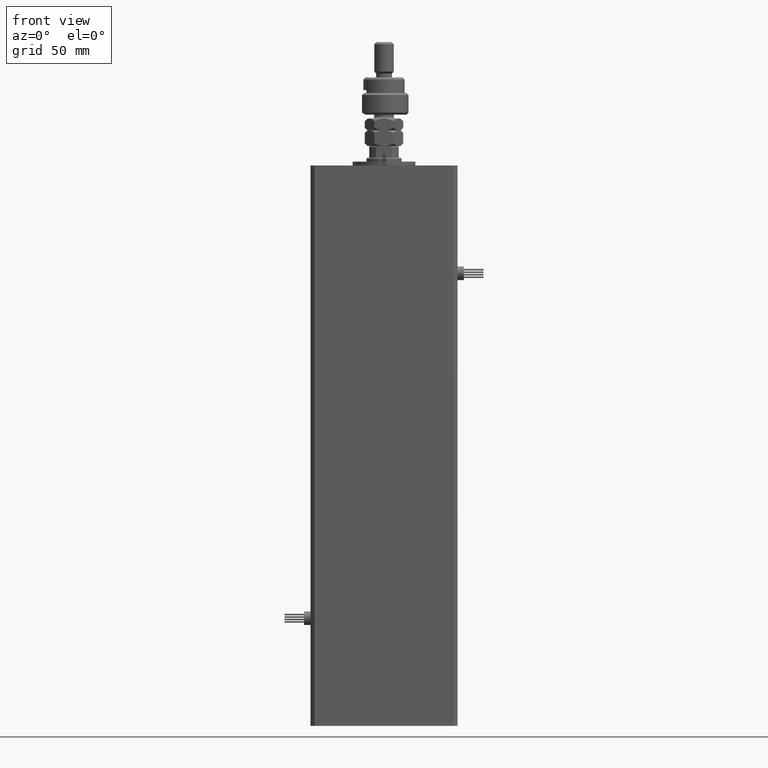
[diagram: clean part render]
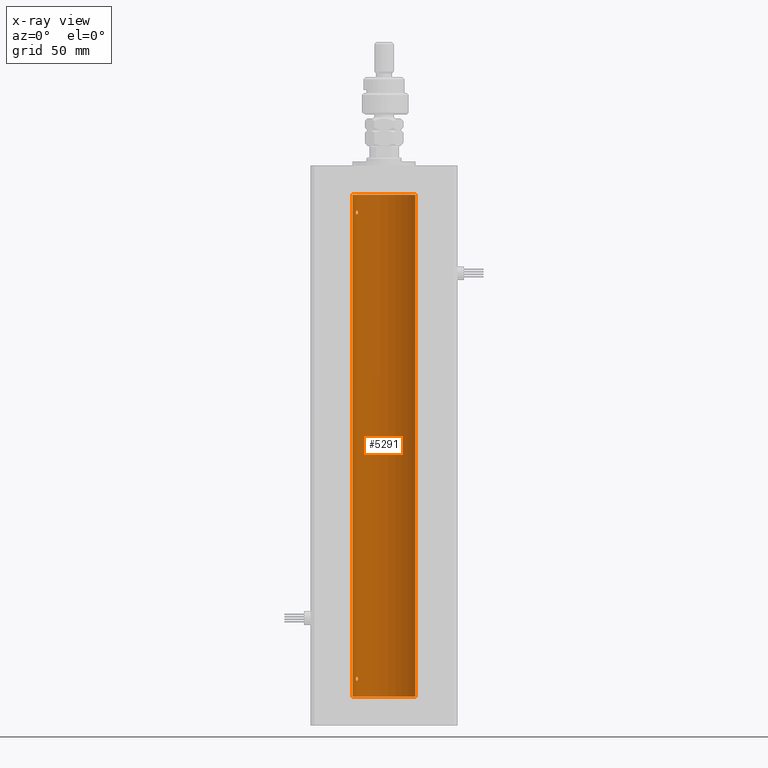
[diagram: x-ray — body ghosted, one internal face saturated and labeled with its STEP entity id]
A machine part, front view, then the same camera in x-ray: the body is ghosted and one INTERNAL B-rep face — a face not visible from any outside direction — is saturated and labeled: STEP entity #5291.
In plain terms, the highlighted cylindrical surface (edge-blend (fillet) strip) has radius 16 mm, axis along (-0, -0, -1).
Its self-contained STEP definition (entity closure, byte-faithful):
#112 = EDGE_LOOP ( 'NONE', ( #23270, #23401, #51077, #47657 ) ) ;
#246 = CARTESIAN_POINT ( 'NONE',  ( -16.00000000000000000, 0.000000000000000000, 256.0000000000000000 ) ) ;
#1392 = CARTESIAN_POINT ( 'NONE',  ( -13.22875655532295447, 8.999999999999996447, 9.000000000000000000 ) ) ;
#1679 = CARTESIAN_POINT ( 'NONE',  ( -14.38749456993815912, 6.999999999999997335, 9.000000000000000000 ) ) ;
#2547 = CARTESIAN_POINT ( 'NONE',  ( -13.37741691572086111, 8.778212469423007036, 247.6408828602271512 ) ) ;
#2845 = CARTESIAN_POINT ( 'NONE',  ( -14.11618354197461400, 7.533333301880474231, 247.8932076519334373 ) ) ;
#3246 = CARTESIAN_POINT ( 'NONE',  ( -14.11621438951177687, 7.533308783217008475, 246.1065710718394826 ) ) ;
#3439 = CARTESIAN_POINT ( 'NONE',  ( -13.49759407097374897, 8.592283911330223845, 8.184099152127670251 ) ) ;
#4105 = CARTESIAN_POINT ( 'NONE',  ( -13.56386909142669772, 8.487613976483636691, 246.1182242979961359 ) ) ;
#4822 = DIRECTION ( 'NONE',  ( -0.000000000000000000, -0.000000000000000000, -1.000000000000000000 ) ) ;
#5019 = B_SPLINE_CURVE_WITH_KNOTS ( 'NONE', 3,
 ( #1392, #41568, #5800, #27786, #54468, #45684, #40993, #36896, #18716, #19577, #11060, #23386, #6086, #19295, #14314, #1679 ),
 .UNSPECIFIED., .F., .F.,
 ( 4, 2, 2, 2, 2, 2, 2, 4 ),
 ( 0.003377672193071777282, 0.003799209865779874882, 0.004220747538487972482, 0.005063822883904168549, 0.005485360556612268318, 0.005906898229320367219, 0.006328435902028466120, 0.006749973574736565889 ),
 .UNSPECIFIED. ) ;
#5210 = DIRECTION ( 'NONE',  ( 1.000000000000000000, 0.000000000000000000, 0.000000000000000000 ) ) ;
#5291 = ADVANCED_FACE ( 'NONE', ( #7080, #55453, #10898 ), #55734, .F. ) ;
#5800 = CARTESIAN_POINT ( 'NONE',  ( -13.24976519864029179, 8.969293778684576779, 9.281535226335156707 ) ) ;
#6086 = CARTESIAN_POINT ( 'NONE',  ( -14.31650799088418324, 7.144337649771912879, 9.535522627373689275 ) ) ;
#6500 = DIRECTION ( 'NONE',  ( -1.000000000000000000, 0.000000000000000000, 0.000000000000000000 ) ) ;
#6958 = CARTESIAN_POINT ( 'NONE',  ( -14.27547848986622014, 7.226527013162185931, 8.352555730181528304 ) ) ;
#7080 = FACE_OUTER_BOUND ( 'NONE', #112, .T. ) ;
#7848 = CARTESIAN_POINT ( 'NONE',  ( -13.98699950016872151, 7.770591669637119558, 8.018476816648481886 ) ) ;
#8245 = ORIENTED_EDGE ( 'NONE', *, *, #8400, .F. ) ;
#8400 = EDGE_CURVE ( 'NONE', #13921, #18887, #22000, .T. ) ;
#8951 = CARTESIAN_POINT ( 'NONE',  ( -16.00000000000000000, 0.000000000000000000, 256.0000000000000000 ) ) ;
#9127 = EDGE_CURVE ( 'NONE', #26738, #33431, #31037, .T. ) ;
#10598 = VERTEX_POINT ( 'NONE', #54082 ) ;
#10898 = FACE_BOUND ( 'NONE', #19167, .T. ) ;
#11060 = CARTESIAN_POINT ( 'NONE',  ( -14.17576283486774535, 7.420212263225985261, 9.825253034304354927 ) ) ;
#12344 = CARTESIAN_POINT ( 'NONE',  ( -14.17528142432533755, 7.421143801852455368, 246.1739430735387089 ) ) ;
#12955 = EDGE_CURVE ( 'NONE', #18887, #13921, #43288, .T. ) ;
#13184 = CARTESIAN_POINT ( 'NONE',  ( -14.38749456993815912, 6.999999999999997335, 9.000000000000000000 ) ) ;
#13560 = VERTEX_POINT ( 'NONE', #33264 ) ;
#13691 = ORIENTED_EDGE ( 'NONE', *, *, #9127, .F. ) ;
#13921 = VERTEX_POINT ( 'NONE', #51852 ) ;
#14314 = CARTESIAN_POINT ( 'NONE',  ( -14.38749456993816445, 6.999999999999997335, 9.142625441524202756 ) ) ;
#15774 = CARTESIAN_POINT ( 'NONE',  ( -13.37674940693422521, 8.779234808442870630, 8.360244157126784259 ) ) ;
#16034 = LINE ( 'NONE', #8951, #50956 ) ;
#16340 = CARTESIAN_POINT ( 'NONE',  ( -13.98878315975728803, 7.767347947480344850, 247.9805461432612503 ) ) ;
#16463 = CARTESIAN_POINT ( 'NONE',  ( -13.70481462797717676, 8.258098555717509726, 246.0259974772911562 ) ) ;
#17039 = CARTESIAN_POINT ( 'NONE',  ( -13.22875655532295802, 8.999999999999996447, 247.0000000000000000 ) ) ;
#17750 = LINE ( 'NONE', #27684, #37399 ) ;
#18555 = EDGE_CURVE ( 'NONE', #10598, #13560, #17750, .T. ) ;
#18576 = ORIENTED_EDGE ( 'NONE', *, *, #32279, .F. ) ;
#18716 = CARTESIAN_POINT ( 'NONE',  ( -13.98878315975729159, 7.767347947480346626, 9.980546143261280534 ) ) ;
#18887 = VERTEX_POINT ( 'NONE', #42633 ) ;
#19167 = EDGE_LOOP ( 'NONE', ( #36142, #8245 ) ) ;
#19295 = CARTESIAN_POINT ( 'NONE',  ( -14.37227256866306213, 7.031482256185707769, 9.284457240976479397 ) ) ;
#19577 = CARTESIAN_POINT ( 'NONE',  ( -14.11618354197461400, 7.533333301880478672, 9.893207651933416003 ) ) ;
#20166 = CARTESIAN_POINT ( 'NONE',  ( -14.37250282441143767, 7.031013007322936659, 8.716856996037261496 ) ) ;
#20438 = EDGE_CURVE ( 'NONE', #13560, #29228, #38447, .T. ) ;
#21326 = CARTESIAN_POINT ( 'NONE',  ( -13.23400746336172951, 8.992294519018086518, 8.857814559023015732 ) ) ;
#21427 = CARTESIAN_POINT ( 'NONE',  ( -13.49759407097375075, 8.592283911330223845, 246.1840991521276862 ) ) ;
#22000 = B_SPLINE_CURVE_WITH_KNOTS ( 'NONE', 3,
 ( #42428, #38048, #42729, #55908, #2547, #33933, #51797, #25126, #16340, #2845, #57929, #22166, #39771, #30391, #48576, #40342 ),
 .UNSPECIFIED., .F., .F.,
 ( 4, 2, 2, 2, 2, 2, 2, 4 ),
 ( 0.003377672193071779884, 0.003799209865779855366, 0.004220747538487930849, 0.005063822883904134722, 0.005485360556612237093, 0.005906898229320339463, 0.006328435902028442701, 0.006749973574736545072 ),
 .UNSPECIFIED. ) ;
#22166 = CARTESIAN_POINT ( 'NONE',  ( -14.27521483392928836, 7.227035590538638310, 247.6478598706881940 ) ) ;
#23270 = ORIENTED_EDGE ( 'NONE', *, *, #18555, .F. ) ;
#23386 = CARTESIAN_POINT ( 'NONE',  ( -14.27521483392929014, 7.227035590538633869, 9.647859870688195727 ) ) ;
#23401 = ORIENTED_EDGE ( 'NONE', *, *, #36137, .T. ) ;
#25126 = CARTESIAN_POINT ( 'NONE',  ( -13.91892506969882071, 7.891973478508848672, 248.0015521226323472 ) ) ;
#25429 = CARTESIAN_POINT ( 'NONE',  ( -13.25390108270225298, 8.962947079338388079, 8.721435762358455079 ) ) ;
#25713 = CARTESIAN_POINT ( 'NONE',  ( -13.77582987033441064, 8.139210687602712824, 8.002110545841816247 ) ) ;
#25822 = CARTESIAN_POINT ( 'NONE',  ( -14.38749456993816267, 6.999999999999999112, 246.8571474096355018 ) ) ;
#26112 = CARTESIAN_POINT ( 'NONE',  ( -14.31660136508398828, 7.144151923086063505, 246.4646217954444580 ) ) ;
#26520 = DIRECTION ( 'NONE',  ( -0.000000000000000000, 0.000000000000000000, 1.000000000000000000 ) ) ;
#26738 = VERTEX_POINT ( 'NONE', #13184 ) ;
#27684 = CARTESIAN_POINT ( 'NONE',  ( 16.00000000000000000, 1.959434878635765131E-15, 256.0000000000000000 ) ) ;
#27786 = CARTESIAN_POINT ( 'NONE',  ( -13.32457971225032445, 8.857769707964649797, 9.531999662746555302 ) ) ;
#29228 = VERTEX_POINT ( 'NONE', #43322 ) ;
#29371 = CIRCLE ( 'NONE', #32179, 16.00000000000000000 ) ;
#29929 = CARTESIAN_POINT ( 'NONE',  ( -14.27547848986622370, 7.226527013162184154, 246.3525557301815070 ) ) ;
#30119 = CARTESIAN_POINT ( 'NONE',  ( -14.17528142432533755, 7.421143801852455368, 8.173943073538659121 ) ) ;
#30391 = CARTESIAN_POINT ( 'NONE',  ( -14.37227256866306213, 7.031482256185711321, 247.2844572409765362 ) ) ;
#30402 = CARTESIAN_POINT ( 'NONE',  ( -13.91838063522420832, 7.892966471903941184, 7.998148313308679036 ) ) ;
#31037 = B_SPLINE_CURVE_WITH_KNOTS ( 'NONE', 3,
 ( #55918, #34539, #20166, #56795, #6958, #30119, #52399, #7848, #30402, #25713, #38057, #43612, #3439, #15774, #47718, #56205, #25429, #21326, #43323, #38637 ),
 .UNSPECIFIED., .F., .F.,
 ( 4, 2, 2, 2, 2, 2, 2, 2, 2, 4 ),
 ( 0.000000000000000000, 0.0004222090241339719976, 0.0008444180482679439952, 0.001266627072401915830, 0.001688836096535887990, 0.002111045120669860151, 0.002533254144803831660, 0.002955463168937803604, 0.003166567681004790660, 0.003377672193071777282 ),
 .UNSPECIFIED. ) ;
#32179 = AXIS2_PLACEMENT_3D ( 'NONE', #44419, #26520, #40026 ) ;
#32279 = EDGE_CURVE ( 'NONE', #33431, #26738, #5019, .T. ) ;
#33076 = VERTEX_POINT ( 'NONE', #246 ) ;
#33264 = CARTESIAN_POINT ( 'NONE',  ( 16.00000000000000000, 1.959434878635765131E-15, 0.000000000000000000 ) ) ;
#33431 = VERTEX_POINT ( 'NONE', #37410 ) ;
#33570 = CARTESIAN_POINT ( 'NONE',  ( 0.000000000000000000, 0.000000000000000000, 0.000000000000000000 ) ) ;
#33933 = CARTESIAN_POINT ( 'NONE',  ( -13.55800260393081835, 8.498809056167509368, 247.9036434462101681 ) ) ;
#34351 = CARTESIAN_POINT ( 'NONE',  ( -13.26838749541400908, 8.941532915076043864, 246.6562177939213711 ) ) ;
#34539 = CARTESIAN_POINT ( 'NONE',  ( -14.38749456993815556, 6.999999999999997335, 8.857147409635411250 ) ) ;
#34930 = CARTESIAN_POINT ( 'NONE',  ( -13.37674940693422876, 8.779234808442867077, 246.3602441571267718 ) ) ;
#36137 = EDGE_CURVE ( 'NONE', #10598, #33076, #29371, .T. ) ;
#36142 = ORIENTED_EDGE ( 'NONE', *, *, #12955, .F. ) ;
#36896 = CARTESIAN_POINT ( 'NONE',  ( -13.91892506969882959, 7.891973478508852224, 10.00155212263243953 ) ) ;
#37399 = VECTOR ( 'NONE', #4822, 1000.000000000000000 ) ;
#37410 = CARTESIAN_POINT ( 'NONE',  ( -13.22875655532295447, 8.999999999999996447, 9.000000000000000000 ) ) ;
#38048 = CARTESIAN_POINT ( 'NONE',  ( -13.22875655532296157, 8.999999999999994671, 247.1406447609177519 ) ) ;
#38057 = CARTESIAN_POINT ( 'NONE',  ( -13.70481462797718031, 8.258098555717506173, 8.025997477291133109 ) ) ;
#38447 = CIRCLE ( 'NONE', #52459, 16.00000000000000000 ) ;
#38637 = CARTESIAN_POINT ( 'NONE',  ( -13.22875655532295447, 8.999999999999996447, 9.000000000000000000 ) ) ;
#38738 = CARTESIAN_POINT ( 'NONE',  ( -14.37250282441143945, 7.031013007322939323, 246.7168569960372793 ) ) ;
#39600 = CARTESIAN_POINT ( 'NONE',  ( -13.32426099938365383, 8.858246960865844954, 246.4688748775329827 ) ) ;
#39771 = CARTESIAN_POINT ( 'NONE',  ( -14.31650799088418147, 7.144337649771908438, 247.5355226273736662 ) ) ;
#39890 = CARTESIAN_POINT ( 'NONE',  ( -13.23400746336172240, 8.992294519018086518, 246.8578145590230406 ) ) ;
#40026 = DIRECTION ( 'NONE',  ( 1.000000000000000000, 0.000000000000000000, 0.000000000000000000 ) ) ;
#40342 = CARTESIAN_POINT ( 'NONE',  ( -14.38749456993815912, 6.999999999999998224, 247.0000000000000000 ) ) ;
#40993 = CARTESIAN_POINT ( 'NONE',  ( -13.70792461986390620, 8.256614593260307444, 9.996621535642271184 ) ) ;
#41568 = CARTESIAN_POINT ( 'NONE',  ( -13.22875655532295447, 8.999999999999996447, 9.140644760917734146 ) ) ;
#42428 = CARTESIAN_POINT ( 'NONE',  ( -13.22875655532295802, 8.999999999999996447, 247.0000000000000000 ) ) ;
#42633 = CARTESIAN_POINT ( 'NONE',  ( -14.38749456993815912, 6.999999999999998224, 247.0000000000000000 ) ) ;
#42729 = CARTESIAN_POINT ( 'NONE',  ( -13.24976519864029179, 8.969293778684573226, 247.2815352263351372 ) ) ;
#43288 = B_SPLINE_CURVE_WITH_KNOTS ( 'NONE', 3,
 ( #57189, #25822, #38738, #26112, #29929, #12344, #3246, #56605, #57469, #56899, #16463, #4105, #21427, #34930, #39600, #34351, #52503, #39890, #52212, #17039 ),
 .UNSPECIFIED., .F., .F.,
 ( 4, 2, 2, 2, 2, 2, 2, 2, 2, 4 ),
 ( 0.000000000000000000, 0.0004222090241339633240, 0.0008444180482679266480, 0.001266627072401889809, 0.001688836096535853296, 0.002111045120669816783, 0.002533254144803779619, 0.002955463168937742888, 0.003166567681004761603, 0.003377672193071779884 ),
 .UNSPECIFIED. ) ;
#43317 = EDGE_LOOP ( 'NONE', ( #13691, #18576 ) ) ;
#43322 = CARTESIAN_POINT ( 'NONE',  ( -16.00000000000000000, 0.000000000000000000, 0.000000000000000000 ) ) ;
#43323 = CARTESIAN_POINT ( 'NONE',  ( -13.22875655532295092, 8.999999999999994671, 8.929565622361636201 ) ) ;
#43612 = CARTESIAN_POINT ( 'NONE',  ( -13.56386909142669950, 8.487613976483636691, 8.118224297996075478 ) ) ;
#44419 = CARTESIAN_POINT ( 'NONE',  ( 0.000000000000000000, 0.000000000000000000, 256.0000000000000000 ) ) ;
#44726 = DIRECTION ( 'NONE',  ( -0.000000000000000000, -0.000000000000000000, -1.000000000000000000 ) ) ;
#45684 = CARTESIAN_POINT ( 'NONE',  ( -13.55800260393082546, 8.498809056167521803, 9.903643446210175227 ) ) ;
#45940 = EDGE_CURVE ( 'NONE', #33076, #29228, #16034, .T. ) ;
#47657 = ORIENTED_EDGE ( 'NONE', *, *, #20438, .F. ) ;
#47718 = CARTESIAN_POINT ( 'NONE',  ( -13.32426099938365027, 8.858246960865852060, 8.468874877532968526 ) ) ;
#48576 = CARTESIAN_POINT ( 'NONE',  ( -14.38749456993815734, 6.999999999999997335, 247.1426254415242454 ) ) ;
#50956 = VECTOR ( 'NONE', #44726, 1000.000000000000000 ) ;
#51077 = ORIENTED_EDGE ( 'NONE', *, *, #45940, .T. ) ;
#51341 = CARTESIAN_POINT ( 'NONE',  ( 0.000000000000000000, 0.000000000000000000, 256.0000000000000000 ) ) ;
#51436 = DIRECTION ( 'NONE',  ( -0.000000000000000000, 0.000000000000000000, 1.000000000000000000 ) ) ;
#51797 = CARTESIAN_POINT ( 'NONE',  ( -13.70792461986390798, 8.256614593260307444, 247.9966215356422765 ) ) ;
#51852 = CARTESIAN_POINT ( 'NONE',  ( -13.22875655532295802, 8.999999999999996447, 247.0000000000000000 ) ) ;
#52212 = CARTESIAN_POINT ( 'NONE',  ( -13.22875655532295625, 8.999999999999994671, 246.9295656223615936 ) ) ;
#52399 = CARTESIAN_POINT ( 'NONE',  ( -14.11621438951177332, 7.533308783217010252, 8.106571071839512754 ) ) ;
#52459 = AXIS2_PLACEMENT_3D ( 'NONE', #33570, #51436, #5210 ) ;
#52503 = CARTESIAN_POINT ( 'NONE',  ( -13.25390108270225120, 8.962947079338391632, 246.7214357623584533 ) ) ;
#54082 = CARTESIAN_POINT ( 'NONE',  ( 16.00000000000000000, 1.959434878635765131E-15, 256.0000000000000000 ) ) ;
#54468 = CARTESIAN_POINT ( 'NONE',  ( -13.37741691572085934, 8.778212469423014142, 9.640882860227099727 ) ) ;
#55453 = FACE_BOUND ( 'NONE', #43317, .T. ) ;
#55734 = CYLINDRICAL_SURFACE ( 'NONE', #56648, 16.00000000000000000 ) ;
#55908 = CARTESIAN_POINT ( 'NONE',  ( -13.32457971225032622, 8.857769707964648020, 247.5319996627465002 ) ) ;
#55918 = CARTESIAN_POINT ( 'NONE',  ( -14.38749456993815912, 6.999999999999997335, 9.000000000000000000 ) ) ;
#56028 = DIRECTION ( 'NONE',  ( -0.000000000000000000, -0.000000000000000000, -1.000000000000000000 ) ) ;
#56205 = CARTESIAN_POINT ( 'NONE',  ( -13.26838749541400198, 8.941532915076040311, 8.656217793921369363 ) ) ;
#56605 = CARTESIAN_POINT ( 'NONE',  ( -13.98699950016872151, 7.770591669637114229, 246.0184768166483877 ) ) ;
#56648 = AXIS2_PLACEMENT_3D ( 'NONE', #51341, #56028, #6500 ) ;
#56795 = CARTESIAN_POINT ( 'NONE',  ( -14.31660136508399184, 7.144151923086058176, 8.464621795444474017 ) ) ;
#56899 = CARTESIAN_POINT ( 'NONE',  ( -13.77582987033440709, 8.139210687602719929, 246.0021105458419015 ) ) ;
#57189 = CARTESIAN_POINT ( 'NONE',  ( -14.38749456993815912, 6.999999999999998224, 247.0000000000000000 ) ) ;
#57469 = CARTESIAN_POINT ( 'NONE',  ( -13.91838063522421010, 7.892966471903945624, 245.9981483133087181 ) ) ;
#57929 = CARTESIAN_POINT ( 'NONE',  ( -14.17576283486774891, 7.420212263225987925, 247.8252530343044100 ) ) ;